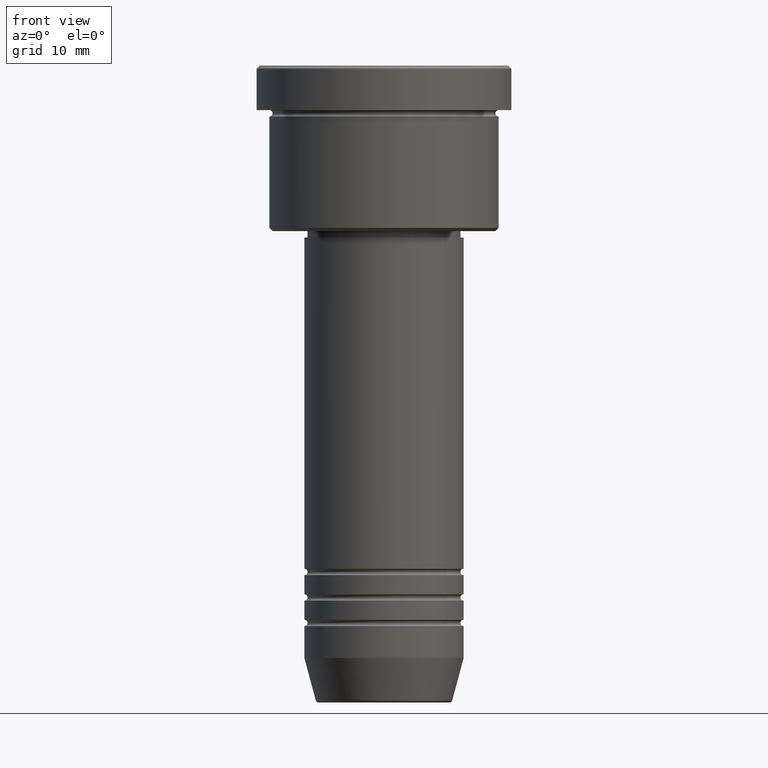
[diagram: clean part render]
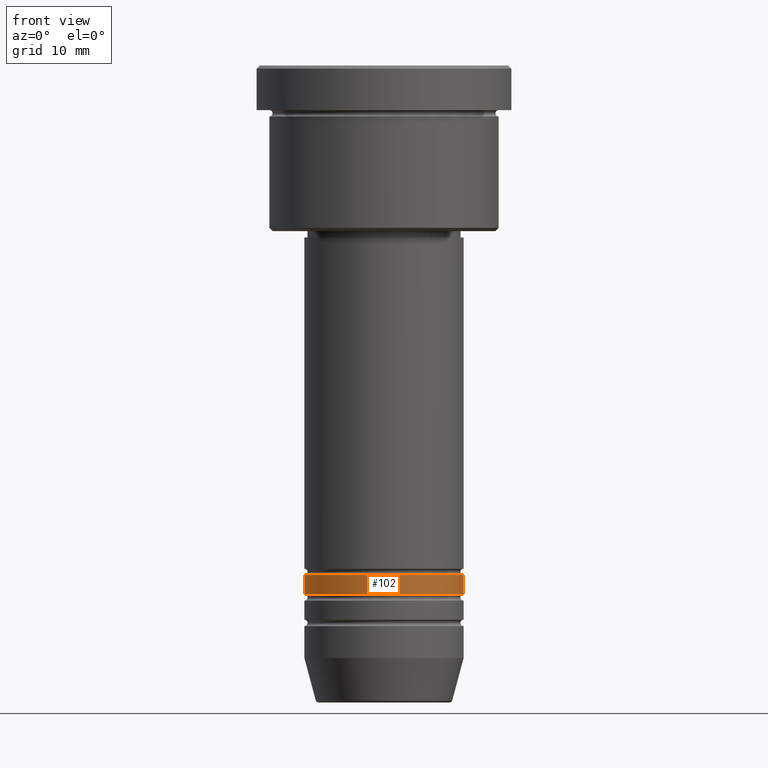
[diagram: same view with one face highlighted and labeled with its STEP entity id]
A machine part, front view. The second image highlights one B-rep face of the part: STEP entity #102.
In plain terms, the highlighted cylindrical surface (partial cylindrical patch) has radius 12.5 mm, axis along (-0, -0, 1).
Its self-contained STEP definition (entity closure, byte-faithful):
#12 = DIRECTION ( 'NONE',  ( -0.000000000000000000, -0.000000000000000000, 1.000000000000000000 ) ) ;
#36 = DIRECTION ( 'NONE',  ( -0.000000000000000000, -0.000000000000000000, 1.000000000000000000 ) ) ;
#47 = DIRECTION ( 'NONE',  ( 1.000000000000000000, 0.000000000000000000, 0.000000000000000000 ) ) ;
#56 = AXIS2_PLACEMENT_3D ( 'NONE', #898, #434, #690 ) ;
#78 = LINE ( 'NONE', #614, #647 ) ;
#102 = ADVANCED_FACE ( 'NONE', ( #194 ), #555, .T. ) ;
#194 = FACE_OUTER_BOUND ( 'NONE', #612, .T. ) ;
#200 = LINE ( 'NONE', #1116, #1073 ) ;
#210 = VERTEX_POINT ( 'NONE', #1130 ) ;
#223 = VERTEX_POINT ( 'NONE', #598 ) ;
#233 = ORIENTED_EDGE ( 'NONE', *, *, #917, .F. ) ;
#290 = ORIENTED_EDGE ( 'NONE', *, *, #963, .T. ) ;
#355 = CARTESIAN_POINT ( 'NONE',  ( -12.50000000000000533, 1.530808498934192113E-15, -82.99999999999998579 ) ) ;
#434 = DIRECTION ( 'NONE',  ( -0.000000000000000000, -0.000000000000000000, 1.000000000000000000 ) ) ;
#512 = AXIS2_PLACEMENT_3D ( 'NONE', #681, #36, #1125 ) ;
#555 = CYLINDRICAL_SURFACE ( 'NONE', #512, 12.50000000000000178 ) ;
#589 = AXIS2_PLACEMENT_3D ( 'NONE', #674, #12, #47 ) ;
#598 = CARTESIAN_POINT ( 'NONE',  ( -12.50000000000000000, 1.530808498934191719E-15, -79.99999999999998579 ) ) ;
#612 = EDGE_LOOP ( 'NONE', ( #233, #290, #802, #1161 ) ) ;
#614 = CARTESIAN_POINT ( 'NONE',  ( -12.50000000000000178, 1.530808498934191719E-15, 0.000000000000000000 ) ) ;
#647 = VECTOR ( 'NONE', #707, 1000.000000000000000 ) ;
#674 = CARTESIAN_POINT ( 'NONE',  ( 0.000000000000000000, 0.000000000000000000, -79.99999999999998579 ) ) ;
#681 = CARTESIAN_POINT ( 'NONE',  ( 0.000000000000000000, 0.000000000000000000, 0.000000000000000000 ) ) ;
#690 = DIRECTION ( 'NONE',  ( 1.000000000000000000, 0.000000000000000000, 0.000000000000000000 ) ) ;
#693 = CARTESIAN_POINT ( 'NONE',  ( 12.50000000000000355, 0.000000000000000000, -82.99999999999998579 ) ) ;
#707 = DIRECTION ( 'NONE',  ( -0.000000000000000000, -0.000000000000000000, 1.000000000000000000 ) ) ;
#802 = ORIENTED_EDGE ( 'NONE', *, *, #877, .T. ) ;
#808 = VERTEX_POINT ( 'NONE', #693 ) ;
#877 = EDGE_CURVE ( 'NONE', #808, #210, #200, .T. ) ;
#895 = EDGE_CURVE ( 'NONE', #223, #210, #967, .T. ) ;
#898 = CARTESIAN_POINT ( 'NONE',  ( 0.000000000000000000, 0.000000000000000000, -82.99999999999998579 ) ) ;
#917 = EDGE_CURVE ( 'NONE', #992, #223, #78, .T. ) ;
#934 = DIRECTION ( 'NONE',  ( -0.000000000000000000, -0.000000000000000000, 1.000000000000000000 ) ) ;
#963 = EDGE_CURVE ( 'NONE', #992, #808, #1004, .T. ) ;
#967 = CIRCLE ( 'NONE', #589, 12.50000000000000000 ) ;
#992 = VERTEX_POINT ( 'NONE', #355 ) ;
#1004 = CIRCLE ( 'NONE', #56, 12.50000000000000355 ) ;
#1073 = VECTOR ( 'NONE', #934, 1000.000000000000000 ) ;
#1116 = CARTESIAN_POINT ( 'NONE',  ( 12.50000000000000178, 0.000000000000000000, 0.000000000000000000 ) ) ;
#1125 = DIRECTION ( 'NONE',  ( 1.000000000000000000, 0.000000000000000000, 0.000000000000000000 ) ) ;
#1130 = CARTESIAN_POINT ( 'NONE',  ( 12.50000000000000000, 0.000000000000000000, -79.99999999999998579 ) ) ;
#1161 = ORIENTED_EDGE ( 'NONE', *, *, #895, .F. ) ;